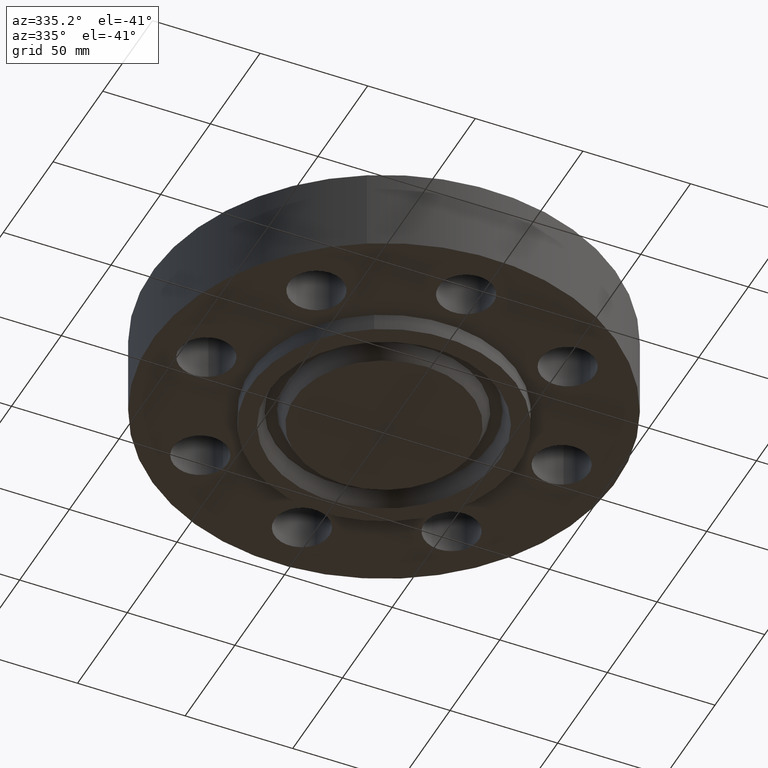
[diagram: clean part render]
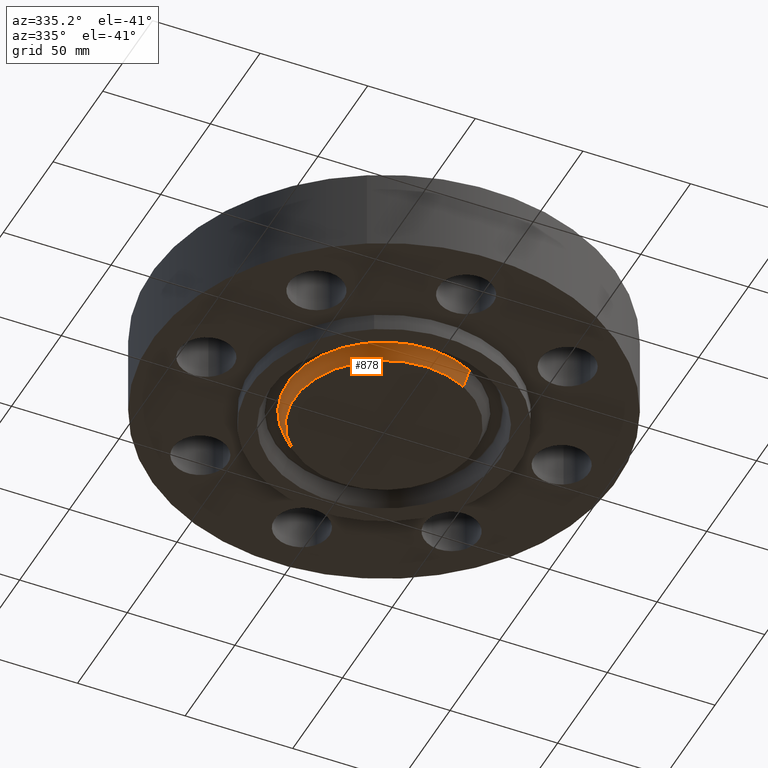
[diagram: same view with one face highlighted and labeled with its STEP entity id]
A machine part, auxiliary view. The second image highlights one B-rep face of the part: STEP entity #878.
In plain terms, the highlighted conical surface has half-angle 23 deg.
Its self-contained STEP definition (entity closure, byte-faithful):
#51=AXIS2_PLACEMENT_3D('Circle Axis2P3D',#49,#50,$) ;
#840=AXIS2_PLACEMENT_3D('Circle Axis2P3D',#838,#839,$) ;
#853=AXIS2_PLACEMENT_3D('Cone Axis2P3D',#850,#851,#852) ;
#44=CARTESIAN_POINT('Vertex',(-0.786497596083,1.43967419279,-0.313000000001)) ;
#46=CARTESIAN_POINT('Vertex',(0.786497596083,-1.43967419279,-0.313000000001)) ;
#49=CARTESIAN_POINT('Axis2P3D Location',(1.39870617276E-016,-6.99353086378E-017,-0.313000000001)) ;
#816=CARTESIAN_POINT('Vertex',(0.846350719677,-1.54923460063,-0.0188873350169)) ;
#823=CARTESIAN_POINT('Vertex',(-0.846350719677,1.54923460063,-0.0188873350169)) ;
#838=CARTESIAN_POINT('Axis2P3D Location',(0.,0.,-0.0188873350169)) ;
#850=CARTESIAN_POINT('Axis2P3D Location',(0.,0.,-0.373000000001)) ;
#855=CARTESIAN_POINT('Line Origine',(-0.81642415788,1.49445439671,-0.165943667509)) ;
#860=CARTESIAN_POINT('Line Origine',(0.81642415788,-1.49445439671,-0.165943667509)) ;
#50=DIRECTION('Axis2P3D Direction',(0.,0.,-0.0393700787402)) ;
#839=DIRECTION('Axis2P3D Direction',(0.,0.,0.0393700787402)) ;
#851=DIRECTION('Axis2P3D Direction',(0.,0.,0.0393700787402)) ;
#852=DIRECTION('Axis2P3D XDirection',(-0.0188750212049,0.0345504945626,0.)) ;
#856=DIRECTION('Vector Direction',(-0.00737505833565,0.0134999537303,0.0362403485611)) ;
#861=DIRECTION('Vector Direction',(0.00737505833565,-0.0134999537303,0.0362403485611)) ;
#857=VECTOR('Line Direction',#856,0.0393700787402) ;
#862=VECTOR('Line Direction',#861,0.0393700787402) ;
#873=ORIENTED_EDGE('',*,*,#864,.F.) ;
#874=ORIENTED_EDGE('',*,*,#842,.F.) ;
#875=ORIENTED_EDGE('',*,*,#859,.T.) ;
#876=ORIENTED_EDGE('',*,*,#53,.F.) ;
#878=ADVANCED_FACE('PartBody',(#877),#854,.T.) ;
#52=CIRCLE('generated circle',#51,1.64050000001) ;
#841=CIRCLE('generated circle',#840,1.76534341942) ;
#854=CONICAL_SURFACE('Cone',#853,1.61503151103,0.401425727959) ;
#53=EDGE_CURVE('',#47,#45,#52,.T.) ;
#842=EDGE_CURVE('',#824,#817,#841,.T.) ;
#859=EDGE_CURVE('',#824,#45,#858,.F.) ;
#864=EDGE_CURVE('',#817,#47,#863,.F.) ;
#872=EDGE_LOOP('',(#873,#874,#875,#876)) ;
#877=FACE_OUTER_BOUND('',#872,.T.) ;
#858=LINE('Line',#855,#857) ;
#863=LINE('Line',#860,#862) ;
#45=VERTEX_POINT('',#44) ;
#47=VERTEX_POINT('',#46) ;
#817=VERTEX_POINT('',#816) ;
#824=VERTEX_POINT('',#823) ;